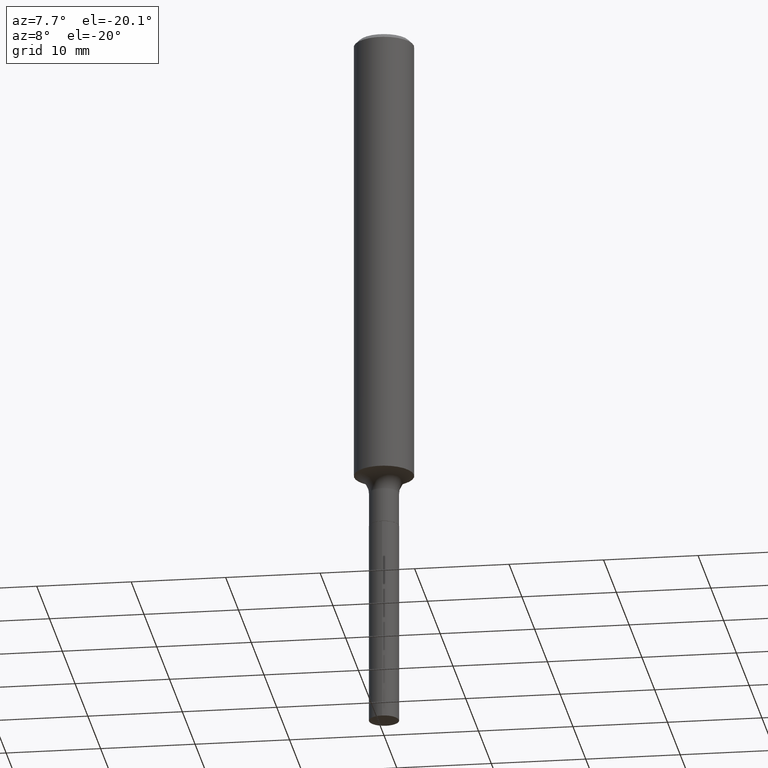
[diagram: clean part render]
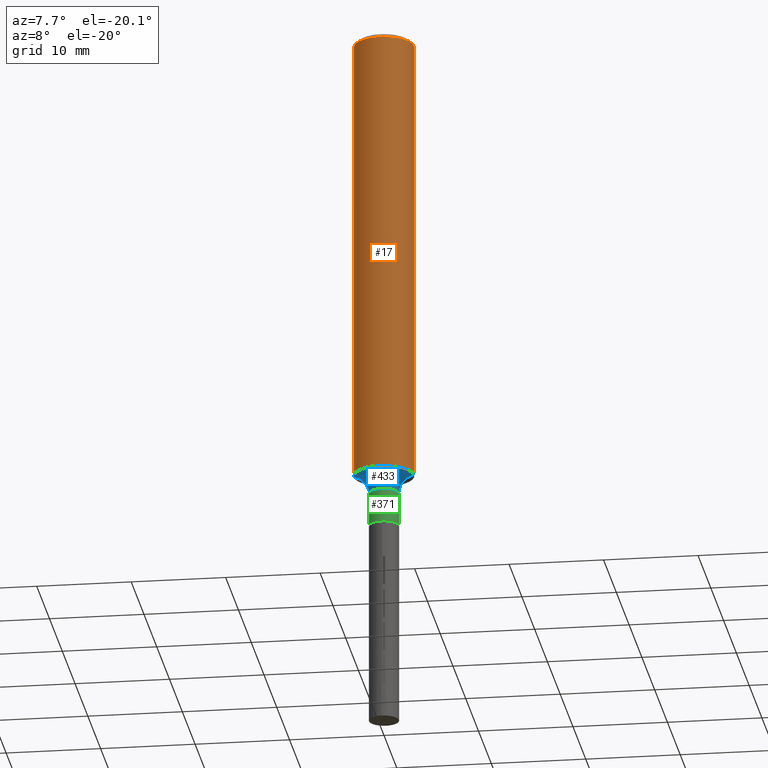
[diagram: same view with three faces highlighted in distinct colors, each labeled with its STEP entity id]
A machine part, auxiliary view with three faces highlighted in distinct colors.
Their STEP definitions:

[orange] entity #17 — the highlighted cylindrical surface (edge-blend (fillet) strip) has radius 3.175 mm, axis along (-0, 0, 1).
#2 = CARTESIAN_POINT ( 'NONE',  ( -0.1250000000000000833, -5.762240128063631559E-15, -1.904755575742896889 ) ) ;
#13 = CARTESIAN_POINT ( 'NONE',  ( 0.1250000000000000000, -9.383356098140928781E-16, -0.01875000000000014155 ) ) ;
#17 = ADVANCED_FACE ( 'NONE', ( #226 ), #487, .T. ) ;
#20 = DIRECTION ( 'NONE',  ( 1.000000000000000000, -6.982962677686266711E-15, 0.000000000000000000 ) ) ;
#51 = AXIS2_PLACEMENT_3D ( 'NONE', #459, #199, #340 ) ;
#74 = EDGE_CURVE ( 'NONE', #251, #273, #75, .T. ) ;
#75 = LINE ( 'NONE', #230, #394 ) ;
#100 = AXIS2_PLACEMENT_3D ( 'NONE', #269, #265, #408 ) ;
#110 = CARTESIAN_POINT ( 'NONE',  ( 4.585254011597165626E-31, -6.546527510330947764E-17, -0.01875000000000014155 ) ) ;
#118 = CIRCLE ( 'NONE', #386, 0.1250000000000000000 ) ;
#159 = CARTESIAN_POINT ( 'NONE',  ( 0.1250000000000000833, -7.523288882474540130E-15, -1.904755575742896889 ) ) ;
#180 = DIRECTION ( 'NONE',  ( -2.445468806185136877E-29, 3.491481338843145188E-15, 1.000000000000000000 ) ) ;
#182 = DIRECTION ( 'NONE',  ( -2.445468806185136597E-29, 3.491481338843145583E-15, 1.000000000000000000 ) ) ;
#199 = DIRECTION ( 'NONE',  ( -2.445468806185136597E-29, 3.491481338843145583E-15, 1.000000000000000000 ) ) ;
#201 = VERTEX_POINT ( 'NONE', #159 ) ;
#214 = VERTEX_POINT ( 'NONE', #13 ) ;
#219 = CIRCLE ( 'NONE', #51, 0.1250000000000001943 ) ;
#226 = FACE_OUTER_BOUND ( 'NONE', #341, .T. ) ;
#230 = CARTESIAN_POINT ( 'NONE',  ( -0.1250000000000001110, 8.881784197001260212E-16, -6.148668862818637832E-30 ) ) ;
#233 = ORIENTED_EDGE ( 'NONE', *, *, #270, .T. ) ;
#236 = ORIENTED_EDGE ( 'NONE', *, *, #309, .T. ) ;
#243 = ORIENTED_EDGE ( 'NONE', *, *, #74, .F. ) ;
#245 = VECTOR ( 'NONE', #180, 39.37007874015748143 ) ;
#251 = VERTEX_POINT ( 'NONE', #2 ) ;
#263 = LINE ( 'NONE', #486, #245 ) ;
#265 = DIRECTION ( 'NONE',  ( -2.445468806185136597E-29, 3.491481338843145583E-15, 1.000000000000000000 ) ) ;
#269 = CARTESIAN_POINT ( 'NONE',  ( 0.000000000000000000, 0.000000000000000000, 0.000000000000000000 ) ) ;
#270 = EDGE_CURVE ( 'NONE', #251, #201, #219, .T. ) ;
#273 = VERTEX_POINT ( 'NONE', #379 ) ;
#287 = EDGE_CURVE ( 'NONE', #273, #214, #118, .T. ) ;
#309 = EDGE_CURVE ( 'NONE', #201, #214, #263, .T. ) ;
#340 = DIRECTION ( 'NONE',  ( 1.000000000000000000, -6.982962677686267499E-15, 0.000000000000000000 ) ) ;
#341 = EDGE_LOOP ( 'NONE', ( #243, #233, #236, #423 ) ) ;
#372 = DIRECTION ( 'NONE',  ( -2.445468806185136877E-29, 3.491481338843145188E-15, 1.000000000000000000 ) ) ;
#379 = CARTESIAN_POINT ( 'NONE',  ( -0.1250000000000000000, -2.469763491733405764E-15, -0.01875000000000014155 ) ) ;
#386 = AXIS2_PLACEMENT_3D ( 'NONE', #110, #182, #20 ) ;
#394 = VECTOR ( 'NONE', #372, 39.37007874015748143 ) ;
#408 = DIRECTION ( 'NONE',  ( 1.000000000000000000, -6.982962677686266711E-15, 4.876176775795935232E-29 ) ) ;
#423 = ORIENTED_EDGE ( 'NONE', *, *, #287, .F. ) ;
#459 = CARTESIAN_POINT ( 'NONE',  ( 4.658020343886464601E-29, -6.650418547763756792E-15, -1.904755575742896889 ) ) ;
#486 = CARTESIAN_POINT ( 'NONE',  ( 0.1250000000000001110, -8.728703347107841277E-16, 6.095220969744924646E-30 ) ) ;
#487 = CYLINDRICAL_SURFACE ( 'NONE', #100, 0.1250000000000001110 ) ;

[blue] entity #433 — the highlighted toroidal blend (fillet) surface has major radius 3.5687 mm and minor (blend) radius 1.9812 mm.
#2 = CARTESIAN_POINT ( 'NONE',  ( -0.1250000000000000833, -5.762240128063631559E-15, -1.904755575742896889 ) ) ;
#8 = EDGE_CURVE ( 'NONE', #247, #123, #18, .T. ) ;
#18 = CIRCLE ( 'NONE', #435, 0.06249999999999991673 ) ;
#51 = AXIS2_PLACEMENT_3D ( 'NONE', #459, #199, #340 ) ;
#61 = CARTESIAN_POINT ( 'NONE',  ( 0.1404999999999999027, -7.898429084730959980E-15, -1.981200000000000072 ) ) ;
#62 = DIRECTION ( 'NONE',  ( 1.000000000000000000, -6.982962677686261977E-15, 0.000000000000000000 ) ) ;
#67 = DIRECTION ( 'NONE',  ( -2.445468806185136597E-29, 3.491481338843145583E-15, 1.000000000000000000 ) ) ;
#69 = DIRECTION ( 'NONE',  ( 1.000000000000000000, -6.982962677686272233E-15, 0.000000000000000000 ) ) ;
#91 = ORIENTED_EDGE ( 'NONE', *, *, #270, .F. ) ;
#96 = ORIENTED_EDGE ( 'NONE', *, *, #301, .F. ) ;
#123 = VERTEX_POINT ( 'NONE', #208 ) ;
#134 = ORIENTED_EDGE ( 'NONE', *, *, #8, .T. ) ;
#151 = AXIS2_PLACEMENT_3D ( 'NONE', #449, #156, #370 ) ;
#156 = DIRECTION ( 'NONE',  ( -2.445468806185136597E-29, 3.491481338843145583E-15, 1.000000000000000000 ) ) ;
#159 = CARTESIAN_POINT ( 'NONE',  ( 0.1250000000000000833, -7.523288882474540130E-15, -1.904755575742896889 ) ) ;
#193 = CIRCLE ( 'NONE', #377, 0.07799999999999995826 ) ;
#199 = DIRECTION ( 'NONE',  ( -2.445468806185136597E-29, 3.491481338843145583E-15, 1.000000000000000000 ) ) ;
#201 = VERTEX_POINT ( 'NONE', #159 ) ;
#208 = CARTESIAN_POINT ( 'NONE',  ( 0.06249999999999991673, -7.353757995871431934E-15, -1.981200000000000072 ) ) ;
#219 = CIRCLE ( 'NONE', #51, 0.1250000000000001943 ) ;
#223 = DIRECTION ( 'NONE',  ( -1.000000000000000000, 7.105427357601001859E-15, 0.000000000000000000 ) ) ;
#228 = AXIS2_PLACEMENT_3D ( 'NONE', #397, #294, #223 ) ;
#244 = CIRCLE ( 'NONE', #228, 0.07799999999999995826 ) ;
#247 = VERTEX_POINT ( 'NONE', #305 ) ;
#251 = VERTEX_POINT ( 'NONE', #2 ) ;
#266 = CARTESIAN_POINT ( 'NONE',  ( 4.844962798813993275E-29, -6.917322828516041053E-15, -1.981200000000000072 ) ) ;
#270 = EDGE_CURVE ( 'NONE', #251, #201, #219, .T. ) ;
#291 = DIRECTION ( 'NONE',  ( -6.982962677686266711E-15, -1.000000000000000000, 3.491481338843145583E-15 ) ) ;
#292 = EDGE_CURVE ( 'NONE', #251, #247, #244, .T. ) ;
#294 = DIRECTION ( 'NONE',  ( 7.105427357601001859E-15, 1.000000000000000000, -3.491481338843145583E-15 ) ) ;
#301 = EDGE_CURVE ( 'NONE', #201, #123, #193, .T. ) ;
#305 = CARTESIAN_POINT ( 'NONE',  ( -0.06249999999999991673, -6.723398256594090548E-15, -1.981200000000000072 ) ) ;
#319 = TOROIDAL_SURFACE ( 'NONE', #151, 0.1404999999999999027, 0.07799999999999995826 ) ;
#326 = FACE_OUTER_BOUND ( 'NONE', #384, .T. ) ;
#340 = DIRECTION ( 'NONE',  ( 1.000000000000000000, -6.982962677686267499E-15, 0.000000000000000000 ) ) ;
#370 = DIRECTION ( 'NONE',  ( 1.000000000000000000, -6.982962677686268288E-15, 4.883557194083113462E-29 ) ) ;
#377 = AXIS2_PLACEMENT_3D ( 'NONE', #61, #291, #62 ) ;
#384 = EDGE_LOOP ( 'NONE', ( #91, #431, #134, #96 ) ) ;
#397 = CARTESIAN_POINT ( 'NONE',  ( -0.1404999999999999027, -5.919010284773100589E-15, -1.981200000000000072 ) ) ;
#431 = ORIENTED_EDGE ( 'NONE', *, *, #292, .T. ) ;
#433 = ADVANCED_FACE ( 'NONE', ( #326 ), #319, .F. ) ;
#435 = AXIS2_PLACEMENT_3D ( 'NONE', #266, #67, #69 ) ;
#449 = CARTESIAN_POINT ( 'NONE',  ( 4.844962798813993275E-29, -6.917322828516041053E-15, -1.981200000000000072 ) ) ;
#459 = CARTESIAN_POINT ( 'NONE',  ( 4.658020343886464601E-29, -6.650418547763756792E-15, -1.904755575742896889 ) ) ;

[green] entity #371 — the highlighted cylindrical surface (edge-blend (fillet) strip) has radius 1.5875 mm, axis along (-0, 0, 1).
#6 = CARTESIAN_POINT ( 'NONE',  ( -0.06249999999999993061, 4.440892098500621231E-16, -3.074334431409312610E-30 ) ) ;
#8 = EDGE_CURVE ( 'NONE', #247, #123, #18, .T. ) ;
#9 = CARTESIAN_POINT ( 'NONE',  ( -0.06249999999999995143, -6.723398256594090548E-15, -2.124500000000000721 ) ) ;
#15 = ORIENTED_EDGE ( 'NONE', *, *, #179, .T. ) ;
#18 = CIRCLE ( 'NONE', #435, 0.06249999999999991673 ) ;
#19 = AXIS2_PLACEMENT_3D ( 'NONE', #260, #293, #324 ) ;
#30 = ORIENTED_EDGE ( 'NONE', *, *, #8, .F. ) ;
#38 = AXIS2_PLACEMENT_3D ( 'NONE', #310, #303, #453 ) ;
#67 = DIRECTION ( 'NONE',  ( -2.445468806185136597E-29, 3.491481338843145583E-15, 1.000000000000000000 ) ) ;
#69 = DIRECTION ( 'NONE',  ( 1.000000000000000000, -6.982962677686272233E-15, 0.000000000000000000 ) ) ;
#88 = DIRECTION ( 'NONE',  ( -2.445468806185136877E-29, 3.491481338843145188E-15, 1.000000000000000000 ) ) ;
#93 = VECTOR ( 'NONE', #491, 39.37007874015748143 ) ;
#97 = LINE ( 'NONE', #6, #462 ) ;
#123 = VERTEX_POINT ( 'NONE', #208 ) ;
#129 = ORIENTED_EDGE ( 'NONE', *, *, #194, .F. ) ;
#133 = VERTEX_POINT ( 'NONE', #9 ) ;
#163 = VERTEX_POINT ( 'NONE', #169 ) ;
#169 = CARTESIAN_POINT ( 'NONE',  ( 0.06249999999999995143, -7.854087271727656156E-15, -2.124500000000000721 ) ) ;
#179 = EDGE_CURVE ( 'NONE', #133, #163, #224, .T. ) ;
#191 = CARTESIAN_POINT ( 'NONE',  ( 0.06249999999999993061, -4.364351673553911764E-16, 3.047610484872456367E-30 ) ) ;
#194 = EDGE_CURVE ( 'NONE', #133, #247, #97, .T. ) ;
#208 = CARTESIAN_POINT ( 'NONE',  ( 0.06249999999999991673, -7.353757995871431934E-15, -1.981200000000000072 ) ) ;
#209 = ORIENTED_EDGE ( 'NONE', *, *, #464, .T. ) ;
#218 = EDGE_LOOP ( 'NONE', ( #129, #15, #209, #30 ) ) ;
#224 = CIRCLE ( 'NONE', #38, 0.06249999999999995143 ) ;
#247 = VERTEX_POINT ( 'NONE', #305 ) ;
#257 = FACE_OUTER_BOUND ( 'NONE', #218, .T. ) ;
#260 = CARTESIAN_POINT ( 'NONE',  ( 0.000000000000000000, 0.000000000000000000, 0.000000000000000000 ) ) ;
#266 = CARTESIAN_POINT ( 'NONE',  ( 4.844962798813993275E-29, -6.917322828516041053E-15, -1.981200000000000072 ) ) ;
#293 = DIRECTION ( 'NONE',  ( -2.445468806185136597E-29, 3.491481338843145583E-15, 1.000000000000000000 ) ) ;
#303 = DIRECTION ( 'NONE',  ( -2.445468806185136597E-29, 3.491481338843145583E-15, 1.000000000000000000 ) ) ;
#305 = CARTESIAN_POINT ( 'NONE',  ( -0.06249999999999991673, -6.723398256594090548E-15, -1.981200000000000072 ) ) ;
#310 = CARTESIAN_POINT ( 'NONE',  ( 5.195398478740323588E-29, -7.417652104372264487E-15, -2.124500000000000721 ) ) ;
#324 = DIRECTION ( 'NONE',  ( 1.000000000000000000, -6.982962677686266711E-15, 4.876176775795935793E-29 ) ) ;
#371 = ADVANCED_FACE ( 'NONE', ( #257 ), #488, .T. ) ;
#435 = AXIS2_PLACEMENT_3D ( 'NONE', #266, #67, #69 ) ;
#453 = DIRECTION ( 'NONE',  ( 1.000000000000000000, -6.982962677686268288E-15, 0.000000000000000000 ) ) ;
#458 = LINE ( 'NONE', #191, #93 ) ;
#462 = VECTOR ( 'NONE', #88, 39.37007874015748143 ) ;
#464 = EDGE_CURVE ( 'NONE', #163, #123, #458, .T. ) ;
#488 = CYLINDRICAL_SURFACE ( 'NONE', #19, 0.06249999999999993061 ) ;
#491 = DIRECTION ( 'NONE',  ( -2.445468806185136877E-29, 3.491481338843145188E-15, 1.000000000000000000 ) ) ;